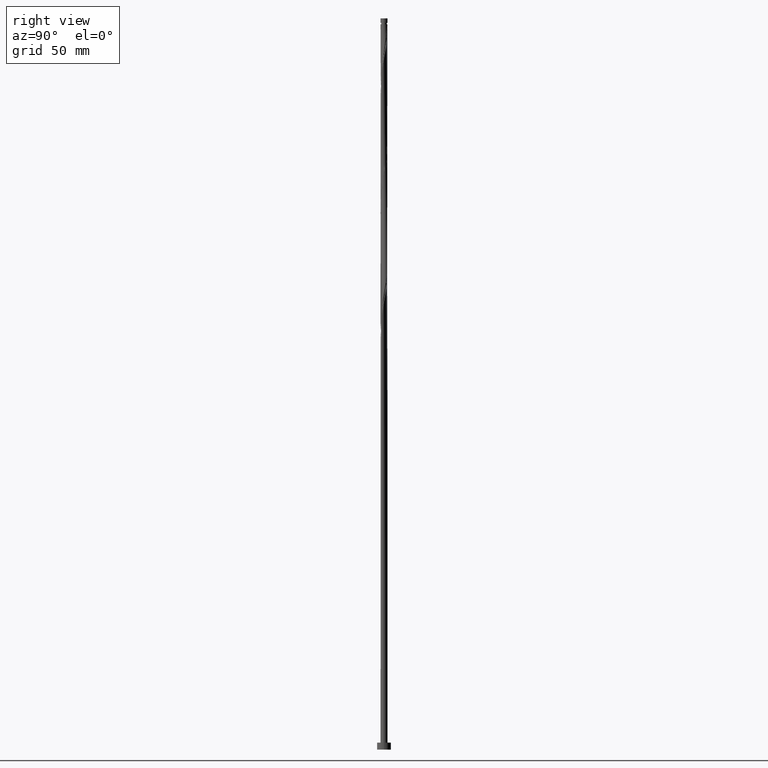
[diagram: clean part render]
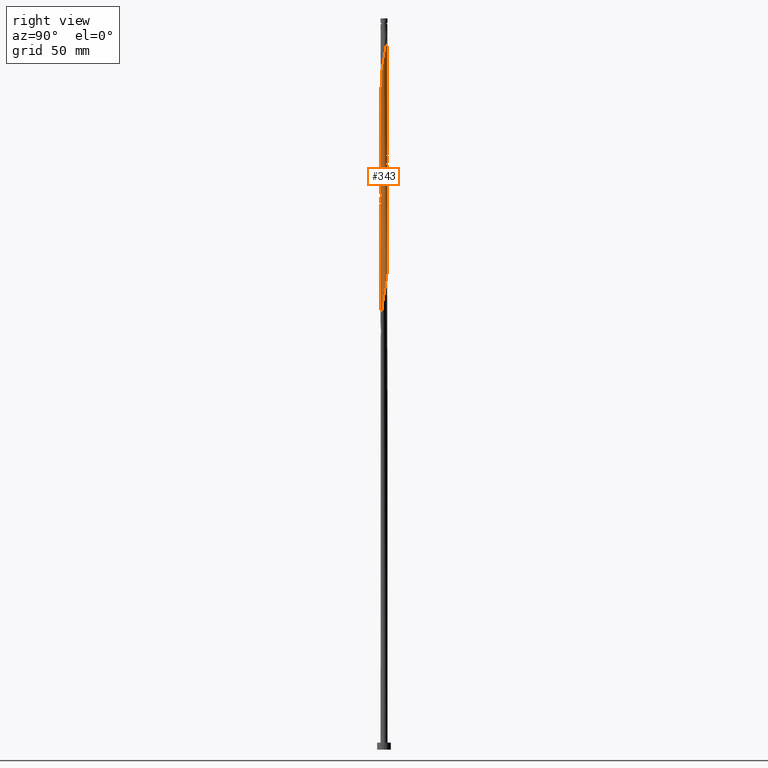
[diagram: same view with one face highlighted and labeled with its STEP entity id]
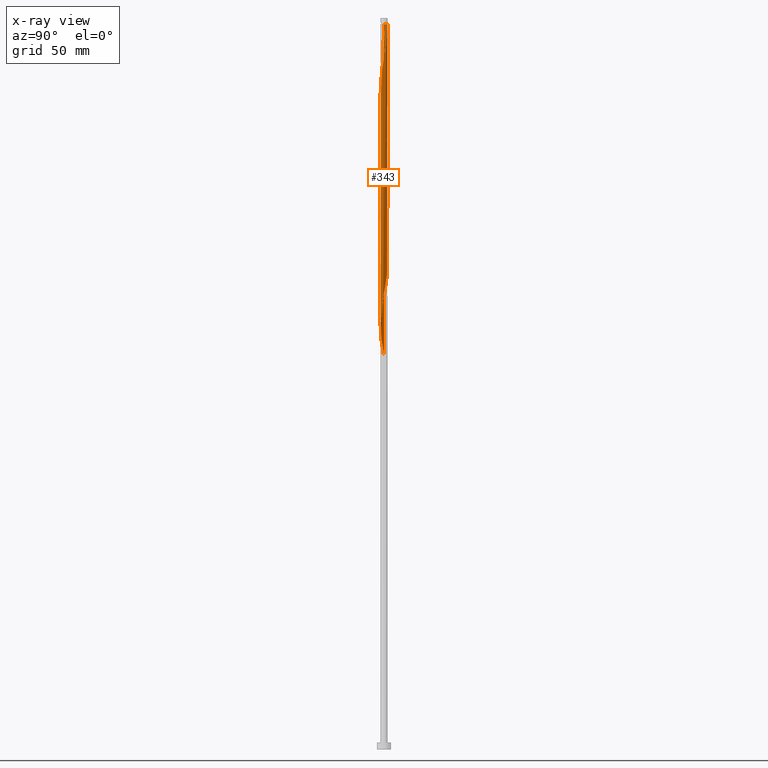
[diagram: x-ray of the same camera — body ghosted, the highlighted face saturated]
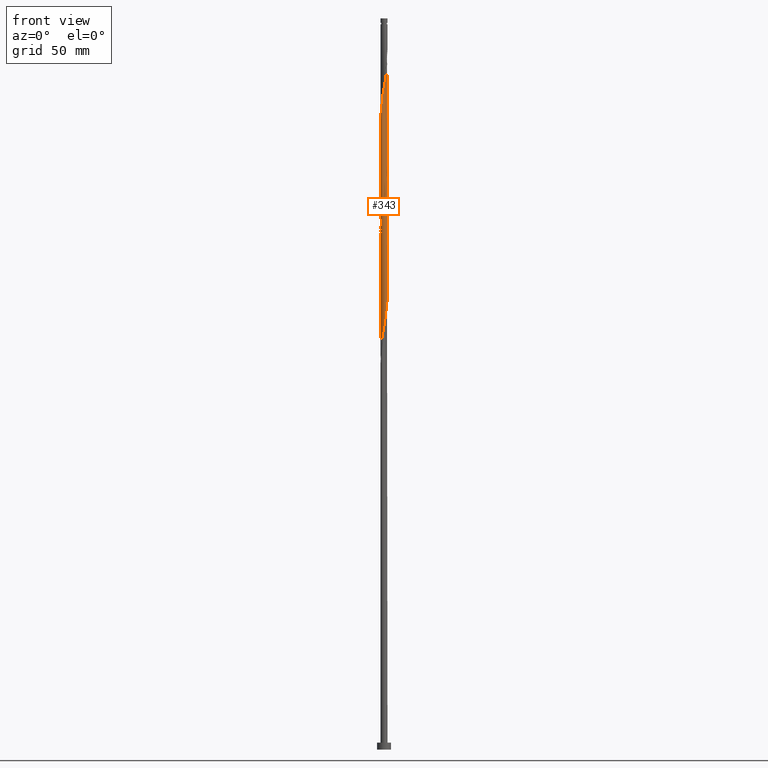
[diagram: same view with one face highlighted and labeled with its STEP entity id]
A machine part, right view. The second image highlights one B-rep face of the part: STEP entity #343.
The next image is the same camera in x-ray: the body ghosted, the highlighted face saturated — about 0% of this face is hidden behind the body in this view.
A second angle (front view) of the same face is appended — the face is thin or edge-on in the first view.
In plain terms, the highlighted cylindrical surface (bore or boss wall) has radius 1.5 mm, axis along (-0, -0, -1).
Its self-contained STEP definition (entity closure, byte-faithful):
#6 = CARTESIAN_POINT ( 'NONE',  ( -1.499565691041210069, -0.03609346550412936838, 169.9706648198285848 ) ) ;
#16 = CARTESIAN_POINT ( 'NONE',  ( -1.453936896692601621, -0.3688732850666835983, 171.8456648198285279 ) ) ;
#21 = CARTESIAN_POINT ( 'NONE',  ( 0.1328670094788252654, 1.503632447910743686, 208.4081648198285848 ) ) ;
#22 = CARTESIAN_POINT ( 'NONE',  ( 0.7721107078697179160, 1.297077189457445101, 257.1581648198285848 ) ) ;
#24 =( BOUNDED_CURVE ( )  B_SPLINE_CURVE ( 2, ( #1069, #1610, #952, #1752, #1759, #678, #807, #938, #1342, #114, #1191, #370, #1224, #494, #799, #528, #360, #1086, #1643, #781, #386, #1500, #650, #919, #1480, #1626, #1199, #928, #1334, #505, #392, #218, #1514, #1207, #249, #1361, #1353, #1326, #226, #86, #1618, #106, #96, #1767, #670 ),
 .UNSPECIFIED., .F., .T. ) 
 B_SPLINE_CURVE_WITH_KNOTS ( ( 3, 2, 2, 2, 2, 2, 2, 2, 2, 2, 2, 2, 2, 2, 2, 2, 2, 2, 2, 2, 2, 2, 3 ),
 ( 0.5545303401299220836, 0.5625000000000000000, 0.5714285714285713969, 0.5803571428571427937, 0.5892857142857143016, 0.5982142857142856984, 0.6071428571428572063, 0.6160714285714286031, 0.6250000000000000000, 0.6339285714285713969, 0.6428571428571427937, 0.6517857142857141906, 0.6607142857142855874, 0.6696428571428570953, 0.6785714285714284921, 0.6874999999999998890, 0.6964285714285712858, 0.7053571428571426827, 0.7142857142857141906, 0.7232142857142855874, 0.7321428571428570953, 0.7410714285714284921, 0.7499999999999998890 ),
 .UNSPECIFIED. ) 
 CURVE ( )  GEOMETRIC_REPRESENTATION_ITEM ( )  RATIONAL_B_SPLINE_CURVE ( ( 0.9079949616362548159, 0.9039886423361179757, 0.9090909090909848889, 0.9033747362666596503, 0.9090909090909848889, 0.9033747362666596503, 0.9090909090909848889, 0.9033747362666596503, 0.9090909090909848889, 0.9033747362666596503, 0.9090909090909848889, 0.9033747362666596503, 0.9090909090909848889, 0.9033747362666596503, 0.9090909090909848889, 0.9033747362666596503, 0.9090909090909848889, 0.9033747362666596503, 0.9090909090909848889, 0.9033747362666596503, 0.9090909090909848889, 0.9033747362666596503, 0.9090909090909848889, 0.9033747362666596503, 0.9090909090909848889, 0.9033747362666596503, 0.9090909090909848889, 0.9033747362666596503, 0.9090909090909848889, 0.9033747362666596503, 0.9090909090909848889, 0.9033747362666596503, 0.9090909090909848889, 0.9033747362666596503, 0.9090909090909848889, 0.9033747362666596503, 0.9090909090909848889, 0.9033747362666596503, 0.9090909090909848889, 0.9033747362666596503, 0.9090909090909848889, 0.9033747362666596503, 0.9090909090909848889, 0.9033747362666597613, 0.9090909090909847778 ) ) 
 REPRESENTATION_ITEM ( '' )  );
#27 = CARTESIAN_POINT ( 'NONE',  ( -1.041379108008156029, -1.092745960423574081, 176.5331648198285279 ) ) ;
#35 = CARTESIAN_POINT ( 'NONE',  ( -1.092745960423574081, 1.041379108008156029, 215.9081648198285563 ) ) ;
#36 = LINE ( 'NONE', #323, #1706 ) ;
#50 = DIRECTION ( 'NONE',  ( -0.000000000000000000, -0.000000000000000000, -1.000000000000000000 ) ) ;
#52 = CARTESIAN_POINT ( 'NONE',  ( 0.6831562578352955439, -1.335401635232065898, 239.3456648198285563 ) ) ;
#58 = CARTESIAN_POINT ( 'NONE',  ( 0.2050539404870840576, -1.495498934171677119, 236.5331648198284995 ) ) ;
#86 = CARTESIAN_POINT ( 'NONE',  ( 0.5326926296462844990, 1.412374859213528122, 307.7831648198284711 ) ) ;
#96 = CARTESIAN_POINT ( 'NONE',  ( 0.03609346550413014554, 1.499565691041212512, 310.5956648198285848 ) ) ;
#106 = CARTESIAN_POINT ( 'NONE',  ( 0.2050539404870850846, 1.495498934171678229, 309.6581648198285848 ) ) ;
#114 = CARTESIAN_POINT ( 'NONE',  ( -0.8336198860243095865, -1.258428411250606116, 279.6581648198285279 ) ) ;
#115 = CARTESIAN_POINT ( 'NONE',  ( -0.6181180803274348712, -1.366722370773350237, 231.8456648198285279 ) ) ;
#132 = CARTESIAN_POINT ( 'NONE',  ( -0.8336198860243083653, 1.258428411250604562, 266.5331648198285279 ) ) ;
#139 = CARTESIAN_POINT ( 'NONE',  ( 0.9067449079389369171, 1.194911574940509480, 256.2206648198285279 ) ) ;
#140 = CARTESIAN_POINT ( 'NONE',  ( -0.4641254527851517708, -1.436367552089254929, 232.7831648198285279 ) ) ;
#141 = VERTEX_POINT ( 'NONE', #184 ) ;
#148 = CARTESIAN_POINT ( 'NONE',  ( 1.335401635232065898, 0.6831562578352955439, 199.9706648198284995 ) ) ;
#156 = CARTESIAN_POINT ( 'NONE',  ( -1.412374859213526568, -0.5326926296462830557, 172.7831648198285563 ) ) ;
#164 = CARTESIAN_POINT ( 'NONE',  ( 1.500000000000000222, 1.836970198721030181E-16, 312.4706648198285279 ) ) ;
#173 = CARTESIAN_POINT ( 'NONE',  ( 1.436367552089254929, -0.4641254527851518819, 193.4081648198285279 ) ) ;
#184 = CARTESIAN_POINT ( 'NONE',  ( -1.500000000000000222, -1.722061120045993171E-15, 169.7701818977346306 ) ) ;
#199 = CARTESIAN_POINT ( 'NONE',  ( 0.9067449079389369171, 1.194911574940509480, 203.7206648198285563 ) ) ;
#212 = CARTESIAN_POINT ( 'NONE',  ( 1.499565691041209625, 0.03609346550412920185, 196.2206648198284711 ) ) ;
#214 = EDGE_CURVE ( 'NONE', #1401, #847, #1687, .T. ) ;
#218 = CARTESIAN_POINT ( 'NONE',  ( 1.436367552089257371, 0.4641254527851518819, 300.2831648198285279 ) ) ;
#226 = CARTESIAN_POINT ( 'NONE',  ( 0.6831562578352973203, 1.335401635232067230, 306.8456648198286416 ) ) ;
#249 = CARTESIAN_POINT ( 'NONE',  ( 1.194911574940512144, 0.9067449079389376942, 303.0956648198285279 ) ) ;
#253 = LINE ( 'NONE', #1090, #1356 ) ;
#256 = CARTESIAN_POINT ( 'NONE',  ( 0.1328670094788252654, 1.503632447910743686, 260.9081648198285279 ) ) ;
#257 = CARTESIAN_POINT ( 'NONE',  ( -1.258428411250604562, -0.8336198860243081432, 227.1581648198285279 ) ) ;
#260 = DIRECTION ( 'NONE',  ( -0.000000000000000000, -0.000000000000000000, -1.000000000000000000 ) ) ;
#262 = CARTESIAN_POINT ( 'NONE',  ( -0.9067449079389369171, -1.194911574940509480, 177.4706648198284995 ) ) ;
#268 = CARTESIAN_POINT ( 'NONE',  ( -1.503632447910743686, 0.1328670094788253486, 221.5331648198285563 ) ) ;
#272 = CARTESIAN_POINT ( 'NONE',  ( 1.495498934171677119, 0.2050539404870839189, 197.1581648198285848 ) ) ;
#275 = CARTESIAN_POINT ( 'NONE',  ( 1.469999999999999751, -0.2984962311319887540, 194.3456648198285563 ) ) ;
#278 = CARTESIAN_POINT ( 'NONE',  ( -0.4641254527851517708, -1.436367552089254929, 180.2831648198285848 ) ) ;
#281 = CARTESIAN_POINT ( 'NONE',  ( 1.258428411250604784, 0.8336198860243081432, 200.9081648198285563 ) ) ;
#303 = LINE ( 'NONE', #720, #567 ) ;
#316 = EDGE_CURVE ( 'NONE', #1710, #141, #726, .T. ) ;
#323 = CARTESIAN_POINT ( 'NONE',  ( -1.500000000000000222, 0.000000000000000000, 315.0000000000000000 ) ) ;
#330 = CARTESIAN_POINT ( 'NONE',  ( 0.3688732850666835983, -1.453936896692601399, 237.4706648198285563 ) ) ;
#343 = ADVANCED_FACE ( 'NONE', ( #436 ), #445, .T. ) ;
#353 = CARTESIAN_POINT ( 'NONE',  ( -1.297077189457445323, 0.7721107078697178050, 217.7831648198286132 ) ) ;
#356 = CARTESIAN_POINT ( 'NONE',  ( -1.469999999999999751, 0.2984962311319885320, 220.5956648198285279 ) ) ;
#360 = CARTESIAN_POINT ( 'NONE',  ( 0.2984962311319884765, -1.470000000000001972, 286.2206648198286416 ) ) ;
#370 = CARTESIAN_POINT ( 'NONE',  ( -0.5326926296462842769, -1.412374859213528344, 281.5331648198285279 ) ) ;
#386 = CARTESIAN_POINT ( 'NONE',  ( 0.9067449079389376942, -1.194911574940511922, 289.9706648198284142 ) ) ;
#392 = CARTESIAN_POINT ( 'NONE',  ( 1.470000000000001972, 0.2984962311319883099, 299.3456648198285848 ) ) ;
#402 = CARTESIAN_POINT ( 'NONE',  ( 1.258428411250604784, 0.8336198860243081432, 253.4081648198285279 ) ) ;
#411 = CARTESIAN_POINT ( 'NONE',  ( -0.03609346550412946553, 1.499565691041210069, 261.8456648198285848 ) ) ;
#423 = CARTESIAN_POINT ( 'NONE',  ( -0.7721107078697178050, -1.297077189457445323, 178.4081648198286132 ) ) ;
#428 = CARTESIAN_POINT ( 'NONE',  ( -0.3688732850666835983, 1.453936896692601621, 211.2206648198285563 ) ) ;
#436 = FACE_OUTER_BOUND ( 'NONE', #1675, .T. ) ;
#440 = CARTESIAN_POINT ( 'NONE',  ( 1.412374859213526568, 0.5326926296462828336, 251.5331648198285563 ) ) ;
#445 = CYLINDRICAL_SURFACE ( 'NONE', #753, 1.500000000000000222 ) ;
#471 = CARTESIAN_POINT ( 'NONE',  ( 0.2050539404870840576, -1.495498934171677119, 184.0331648198285563 ) ) ;
#487 = CARTESIAN_POINT ( 'NONE',  ( -1.366722370773350237, 0.6181180803274346491, 218.7206648198284995 ) ) ;
#494 = CARTESIAN_POINT ( 'NONE',  ( -0.2050539404870848070, -1.495498934171678673, 283.4081648198285848 ) ) ;
#505 = CARTESIAN_POINT ( 'NONE',  ( 1.503632447910746128, 0.1328670094788250156, 298.4081648198285848 ) ) ;
#528 = CARTESIAN_POINT ( 'NONE',  ( 0.1328670094788250988, -1.503632447910746128, 285.2831648198286416 ) ) ;
#536 = CARTESIAN_POINT ( 'NONE',  ( -1.366722370773350237, 0.6181180803274346491, 271.2206648198285848 ) ) ;
#537 = CARTESIAN_POINT ( 'NONE',  ( -1.149903759629380406, -0.9631829232239409455, 228.0956648198285848 ) ) ;
#545 = CARTESIAN_POINT ( 'NONE',  ( 1.495498934171677119, 0.2050539404870839189, 249.6581648198285563 ) ) ;
#546 = CARTESIAN_POINT ( 'NONE',  ( -1.495498934171677119, -0.2050539404870840576, 223.4081648198285279 ) ) ;
#554 = CARTESIAN_POINT ( 'NONE',  ( 1.335401635232065898, 0.6831562578352955439, 252.4706648198285279 ) ) ;
#558 = CARTESIAN_POINT ( 'NONE',  ( 1.503632447910743464, -0.1328670094788255429, 195.2831648198285563 ) ) ;
#560 = VERTEX_POINT ( 'NONE', #642 ) ;
#564 = CARTESIAN_POINT ( 'NONE',  ( -1.469999999999999751, 0.2984962311319885320, 273.0956648198285848 ) ) ;
#567 = VECTOR ( 'NONE', #855, 1000.000000000000000 ) ;
#587 = EDGE_CURVE ( 'NONE', #560, #847, #24, .T. ) ;
#598 = CARTESIAN_POINT ( 'NONE',  ( 1.194911574940509480, -0.9067449079389369171, 243.0956648198285279 ) ) ;
#603 = CARTESIAN_POINT ( 'NONE',  ( 0.6831562578352955439, -1.335401635232065898, 186.8456648198285563 ) ) ;
#619 = CARTESIAN_POINT ( 'NONE',  ( 0.03609346550412930593, -1.499565691041210069, 235.5956648198285279 ) ) ;
#623 = CARTESIAN_POINT ( 'NONE',  ( 0.9631829232239409455, -1.149903759629380628, 188.7206648198286132 ) ) ;
#626 = CARTESIAN_POINT ( 'NONE',  ( 0.6181180803274348712, 1.366722370773350237, 205.5956648198285848 ) ) ;
#628 = EDGE_CURVE ( 'NONE', #1028, #1710, #956, .T. ) ;
#636 = ORIENTED_EDGE ( 'NONE', *, *, #628, .F. ) ;
#642 = CARTESIAN_POINT ( 'NONE',  ( -1.500000000000002442, 2.238866028228796796E-16, 271.4211477419224821 ) ) ;
#650 = CARTESIAN_POINT ( 'NONE',  ( 1.149903759629381739, -0.9631829232239430549, 291.8456648198285279 ) ) ;
#651 = CARTESIAN_POINT ( 'NONE',  ( -0.9631829232239410565, 1.149903759629380406, 214.9706648198285563 ) ) ;
#670 = CARTESIAN_POINT ( 'NONE',  ( -0.2984962311320269457, 1.470000000000385221, 312.4706648198285279 ) ) ;
#671 = CARTESIAN_POINT ( 'NONE',  ( -0.2984962311319886430, -1.469999999999999751, 233.7206648198285848 ) ) ;
#678 = CARTESIAN_POINT ( 'NONE',  ( -1.297077189457447099, -0.7721107078697182491, 275.9081648198285848 ) ) ;
#686 = CARTESIAN_POINT ( 'NONE',  ( -1.092745960423574081, 1.041379108008156029, 268.4081648198284711 ) ) ;
#692 = CARTESIAN_POINT ( 'NONE',  ( -0.2050539404870842242, 1.495498934171677119, 262.7831648198284711 ) ) ;
#718 = ORIENTED_EDGE ( 'NONE', *, *, #1694, .T. ) ;
#720 = CARTESIAN_POINT ( 'NONE',  ( 1.500000000000000222, 1.836970198721030181E-16, 315.0000000000000000 ) ) ;
#726 =( BOUNDED_CURVE ( )  B_SPLINE_CURVE ( 2, ( #1576, #1163, #870, #1142, #1431, #881, #598, #1444, #1016, #1298, #52, #1167, #330, #58, #619, #1035, #671, #140, #115, #1124, #1790, #946, #537, #257, #976, #1379, #1239, #546, #1104, #268, #356, #1382, #487, #353, #1474, #35, #651, #1760, #1691, #974, #428, #897, #1806, #21, #1670, #1458, #626, #1396, #199, #759, #1539, #281, #148, #802, #1738, #272, #212, #558, #275, #173, #837, #739, #1438, #1311, #623, #886, #603, #1449, #1728, #471, #1041, #1347, #1019, #278, #1667, #423, #262, #27, #1392, #1699, #1405, #156, #16, #1250, #6, #1128, #1686 ),
 .UNSPECIFIED., .F., .T. ) 
 B_SPLINE_CURVE_WITH_KNOTS ( ( 3, 2, 2, 2, 2, 2, 2, 2, 2, 2, 2, 2, 2, 2, 2, 2, 2, 2, 2, 2, 2, 2, 2, 2, 2, 2, 2, 2, 2, 2, 2, 2, 2, 2, 2, 2, 2, 2, 2, 2, 2, 2, 2, 3 ),
 ( 0.5545303401299221946, 0.5625000000000000000, 0.5714285714285713969, 0.5803571428571429047, 0.5892857142857143016, 0.5982142857142856984, 0.6071428571428570953, 0.6160714285714286031, 0.6250000000000000000, 0.6339285714285713969, 0.6428571428571429047, 0.6517857142857143016, 0.6607142857142856984, 0.6696428571428570953, 0.6785714285714286031, 0.6875000000000000000, 0.6964285714285713969, 0.7053571428571429047, 0.7142857142857143016, 0.7232142857142856984, 0.7321428571428570953, 0.7410714285714286031, 0.7500000000000000000, 0.7589285714285713969, 0.7678571428571429047, 0.7767857142857143016, 0.7857142857142856984, 0.7946428571428570953, 0.8035714285714286031, 0.8125000000000000000, 0.8214285714285713969, 0.8303571428571429047, 0.8392857142857143016, 0.8482142857142856984, 0.8571428571428570953, 0.8660714285714286031, 0.8750000000000000000, 0.8839285714285713969, 0.8928571428571430157, 0.9017857142857141906, 0.9107142857142858094, 0.9196428571428569843, 0.9285714285714286031, 0.9295303401299221946 ),
 .UNSPECIFIED. ) 
 CURVE ( )  GEOMETRIC_REPRESENTATION_ITEM ( )  RATIONAL_B_SPLINE_CURVE ( ( 0.9079949616362491538, 0.9039886423361123136, 0.9090909090909792267, 0.9033747362666539882, 0.9090909090909792267, 0.9033747362666539882, 0.9090909090909792267, 0.9033747362666539882, 0.9090909090909792267, 0.9033747362666539882, 0.9090909090909792267, 0.9033747362666539882, 0.9090909090909792267, 0.9033747362666539882, 0.9090909090909792267, 0.9033747362666539882, 0.9090909090909792267, 0.9033747362666539882, 0.9090909090909792267, 0.9033747362666539882, 0.9090909090909792267, 0.9033747362666539882, 0.9090909090909792267, 0.9033747362666539882, 0.9090909090909792267, 0.9033747362666539882, 0.9090909090909792267, 0.9033747362666539882, 0.9090909090909792267, 0.9033747362666539882, 0.9090909090909792267, 0.9033747362666539882, 0.9090909090909792267, 0.9033747362666539882, 0.9090909090909792267, 0.9033747362666539882, 0.9090909090909792267, 0.9033747362666539882, 0.9090909090909792267, 0.9033747362666539882, 0.9090909090909792267, 0.9033747362666539882, 0.9090909090909792267, 0.9033747362666539882, 0.9090909090909792267, 0.9033747362666539882, 0.9090909090909792267, 0.9033747362666539882, 0.9090909090909792267, 0.9033747362666539882, 0.9090909090909792267, 0.9033747362666539882, 0.9090909090909792267, 0.9033747362666539882, 0.9090909090909792267, 0.9033747362666539882, 0.9090909090909792267, 0.9033747362666539882, 0.9090909090909792267, 0.9033747362666539882, 0.9090909090909792267, 0.9033747362666539882, 0.9090909090909792267, 0.9033747362666539882, 0.9090909090909792267, 0.9033747362666539882, 0.9090909090909792267, 0.9033747362666539882, 0.9090909090909792267, 0.9033747362666539882, 0.9090909090909792267, 0.9033747362666539882, 0.9090909090909792267, 0.9033747362666539882, 0.9090909090909792267, 0.9033747362666539882, 0.9090909090909792267, 0.9033747362666539882, 0.9090909090909792267, 0.9033747362666539882, 0.9090909090909792267, 0.9033747362666539882, 0.9090909090909792267, 0.9033747362666539882, 0.9090909090909792267, 0.9084770030215209013, 0.9079949616362491538 ) ) 
 REPRESENTATION_ITEM ( '' )  );
#738 = CARTESIAN_POINT ( 'NONE',  ( 1.499999999999999556, 1.554146167928832401E-15, 248.5201818977346022 ) ) ;
#739 = CARTESIAN_POINT ( 'NONE',  ( 1.297077189457445101, -0.7721107078697178050, 191.5331648198285848 ) ) ;
#743 = DIRECTION ( 'NONE',  ( -1.000000000000000000, 0.000000000000000000, 0.000000000000000000 ) ) ;
#753 = AXIS2_PLACEMENT_3D ( 'NONE', #1404, #990, #875 ) ;
#759 = CARTESIAN_POINT ( 'NONE',  ( 1.041379108008156251, 1.092745960423573859, 202.7831648198285563 ) ) ;
#781 = CARTESIAN_POINT ( 'NONE',  ( 0.7721107078697182491, -1.297077189457447099, 289.0331648198285279 ) ) ;
#799 = CARTESIAN_POINT ( 'NONE',  ( -0.03609346550412988880, -1.499565691041212512, 284.3456648198286416 ) ) ;
#802 = CARTESIAN_POINT ( 'NONE',  ( 1.412374859213526568, 0.5326926296462828336, 199.0331648198285848 ) ) ;
#807 = CARTESIAN_POINT ( 'NONE',  ( -1.194911574940511922, -0.9067449079389379163, 276.8456648198285848 ) ) ;
#825 = CARTESIAN_POINT ( 'NONE',  ( 0.6181180803274348712, 1.366722370773350237, 258.0956648198285279 ) ) ;
#837 = CARTESIAN_POINT ( 'NONE',  ( 1.366722370773350237, -0.6181180803274348712, 192.4706648198286132 ) ) ;
#847 = VERTEX_POINT ( 'NONE', #1559 ) ;
#855 = DIRECTION ( 'NONE',  ( -0.000000000000000000, -0.000000000000000000, -1.000000000000000000 ) ) ;
#861 = DIRECTION ( 'NONE',  ( -0.000000000000000000, -0.000000000000000000, -1.000000000000000000 ) ) ;
#870 = CARTESIAN_POINT ( 'NONE',  ( 1.469999999999999751, -0.2984962311319887540, 246.8456648198285848 ) ) ;
#875 = DIRECTION ( 'NONE',  ( -1.000000000000000000, 0.000000000000000000, 0.000000000000000000 ) ) ;
#881 = CARTESIAN_POINT ( 'NONE',  ( 1.297077189457445101, -0.7721107078697178050, 244.0331648198285563 ) ) ;
#886 = CARTESIAN_POINT ( 'NONE',  ( 0.8336198860243081432, -1.258428411250604784, 187.7831648198285279 ) ) ;
#897 = CARTESIAN_POINT ( 'NONE',  ( -0.2050539404870842242, 1.495498934171677119, 210.2831648198285563 ) ) ;
#919 = CARTESIAN_POINT ( 'NONE',  ( 1.258428411250606116, -0.8336198860243099196, 292.7831648198284711 ) ) ;
#928 = CARTESIAN_POINT ( 'NONE',  ( 1.495498934171678229, -0.2050539404870850013, 296.5331648198284711 ) ) ;
#938 = CARTESIAN_POINT ( 'NONE',  ( -1.092745960423575635, -1.041379108008156917, 277.7831648198285848 ) ) ;
#946 = CARTESIAN_POINT ( 'NONE',  ( -1.041379108008156029, -1.092745960423574081, 229.0331648198284995 ) ) ;
#952 = CARTESIAN_POINT ( 'NONE',  ( -1.470000000000001972, -0.2984962311319885320, 273.0956648198285848 ) ) ;
#956 =( BOUNDED_CURVE ( )  B_SPLINE_CURVE ( 2, ( #1671, #959, #564, #1522, #536, #1238, #1789, #686, #975, #132, #1653, #1095, #1807, #692, #411, #256, #1799, #1264, #825, #22, #139, #994, #1231, #402, #554, #440, #1254, #545, #1112, #1378, #1103 ),
 .UNSPECIFIED., .F., .T. ) 
 B_SPLINE_CURVE_WITH_KNOTS ( ( 3, 2, 2, 2, 2, 2, 2, 2, 2, 2, 2, 2, 2, 2, 2, 3 ),
 ( 0.4295303401299220281, 0.4375000000000000000, 0.4464285714285714524, 0.4553571428571428492, 0.4642857142857143016, 0.4732142857142856984, 0.4821428571428571508, 0.4910714285714285476, 0.5000000000000000000, 0.5089285714285713969, 0.5178571428571429047, 0.5267857142857143016, 0.5357142857142856984, 0.5446428571428570953, 0.5535714285714286031, 0.5545303401299221946 ),
 .UNSPECIFIED. ) 
 CURVE ( )  GEOMETRIC_REPRESENTATION_ITEM ( )  RATIONAL_B_SPLINE_CURVE ( ( 0.9079949616362492648, 0.9039886423361123136, 0.9090909090909792267, 0.9033747362666539882, 0.9090909090909792267, 0.9033747362666539882, 0.9090909090909792267, 0.9033747362666539882, 0.9090909090909792267, 0.9033747362666539882, 0.9090909090909792267, 0.9033747362666539882, 0.9090909090909792267, 0.9033747362666539882, 0.9090909090909792267, 0.9033747362666539882, 0.9090909090909792267, 0.9033747362666539882, 0.9090909090909792267, 0.9033747362666539882, 0.9090909090909792267, 0.9033747362666539882, 0.9090909090909792267, 0.9033747362666539882, 0.9090909090909792267, 0.9033747362666539882, 0.9090909090909792267, 0.9033747362666539882, 0.9090909090909792267, 0.9084770030215209013, 0.9079949616362491538 ) ) 
 REPRESENTATION_ITEM ( '' )  );
#959 = CARTESIAN_POINT ( 'NONE',  ( -1.499999999999999778, 0.1507556722888842016, 273.9319108187709162 ) ) ;
#974 = CARTESIAN_POINT ( 'NONE',  ( -0.5326926296462831667, 1.412374859213526568, 212.1581648198285563 ) ) ;
#975 = CARTESIAN_POINT ( 'NONE',  ( -0.9631829232239410565, 1.149903759629380406, 267.4706648198285848 ) ) ;
#976 = CARTESIAN_POINT ( 'NONE',  ( -1.335401635232065898, -0.6831562578352956550, 226.2206648198285563 ) ) ;
#979 = CARTESIAN_POINT ( 'NONE',  ( -1.500000000000000000, 1.417948484544913217E-16, 274.7701818977346875 ) ) ;
#990 = DIRECTION ( 'NONE',  ( -0.000000000000000000, -0.000000000000000000, -1.000000000000000000 ) ) ;
#994 = CARTESIAN_POINT ( 'NONE',  ( 1.041379108008156251, 1.092745960423573859, 255.2831648198285563 ) ) ;
#1016 = CARTESIAN_POINT ( 'NONE',  ( 0.9631829232239409455, -1.149903759629380628, 241.2206648198285563 ) ) ;
#1019 = CARTESIAN_POINT ( 'NONE',  ( -0.2984962311319886430, -1.469999999999999751, 181.2206648198285563 ) ) ;
#1028 = VERTEX_POINT ( 'NONE', #979 ) ;
#1035 = CARTESIAN_POINT ( 'NONE',  ( -0.1328670094788254319, -1.503632447910743464, 234.6581648198284995 ) ) ;
#1041 = CARTESIAN_POINT ( 'NONE',  ( 0.03609346550412930593, -1.499565691041210069, 183.0956648198285848 ) ) ;
#1069 = CARTESIAN_POINT ( 'NONE',  ( -1.500000000000002220, 2.238866028228796796E-16, 271.4211477419224821 ) ) ;
#1086 = CARTESIAN_POINT ( 'NONE',  ( 0.4641254527851519374, -1.436367552089257371, 287.1581648198285279 ) ) ;
#1090 = CARTESIAN_POINT ( 'NONE',  ( -1.500000000000000222, 0.000000000000000000, 315.0000000000000000 ) ) ;
#1095 = CARTESIAN_POINT ( 'NONE',  ( -0.5326926296462831667, 1.412374859213526568, 264.6581648198285279 ) ) ;
#1103 = CARTESIAN_POINT ( 'NONE',  ( 1.499999999999999556, 1.554146167928832401E-15, 248.5201818977346022 ) ) ;
#1104 = CARTESIAN_POINT ( 'NONE',  ( -1.499565691041210069, -0.03609346550412936838, 222.4706648198285279 ) ) ;
#1112 = CARTESIAN_POINT ( 'NONE',  ( 1.499565691041209625, 0.03609346550412920185, 248.7206648198285563 ) ) ;
#1116 = ORIENTED_EDGE ( 'NONE', *, *, #214, .T. ) ;
#1124 = CARTESIAN_POINT ( 'NONE',  ( -0.7721107078697178050, -1.297077189457445323, 230.9081648198284995 ) ) ;
#1128 = CARTESIAN_POINT ( 'NONE',  ( -1.500000000000000222, -0.01804934574958114851, 169.8705445859597489 ) ) ;
#1142 = CARTESIAN_POINT ( 'NONE',  ( 1.436367552089254929, -0.4641254527851518819, 245.9081648198285563 ) ) ;
#1163 = CARTESIAN_POINT ( 'NONE',  ( 1.499999999999998668, -0.1507556722888866163, 247.6819108187709730 ) ) ;
#1167 = CARTESIAN_POINT ( 'NONE',  ( 0.5326926296462830557, -1.412374859213526568, 238.4081648198285563 ) ) ;
#1191 = CARTESIAN_POINT ( 'NONE',  ( -0.6831562578352973203, -1.335401635232067230, 280.5956648198285848 ) ) ;
#1199 = CARTESIAN_POINT ( 'NONE',  ( 1.453936896692603620, -0.3688732850666848195, 295.5956648198286985 ) ) ;
#1207 = CARTESIAN_POINT ( 'NONE',  ( 1.297077189457447099, 0.7721107078697182491, 302.1581648198284711 ) ) ;
#1224 = CARTESIAN_POINT ( 'NONE',  ( -0.3688732850666847640, -1.453936896692603620, 282.4706648198286416 ) ) ;
#1231 = CARTESIAN_POINT ( 'NONE',  ( 1.149903759629380628, 0.9631829232239409455, 254.3456648198285563 ) ) ;
#1233 = ORIENTED_EDGE ( 'NONE', *, *, #587, .F. ) ;
#1238 = CARTESIAN_POINT ( 'NONE',  ( -1.297077189457445323, 0.7721107078697178050, 270.2831648198285848 ) ) ;
#1239 = CARTESIAN_POINT ( 'NONE',  ( -1.453936896692601621, -0.3688732850666835983, 224.3456648198285563 ) ) ;
#1250 = CARTESIAN_POINT ( 'NONE',  ( -1.495498934171677119, -0.2050539404870840576, 170.9081648198285563 ) ) ;
#1254 = CARTESIAN_POINT ( 'NONE',  ( 1.453936896692601621, 0.3688732850666834318, 250.5956648198285279 ) ) ;
#1264 = CARTESIAN_POINT ( 'NONE',  ( 0.4641254527851519374, 1.436367552089254929, 259.0331648198285279 ) ) ;
#1298 = CARTESIAN_POINT ( 'NONE',  ( 0.8336198860243081432, -1.258428411250604784, 240.2831648198284995 ) ) ;
#1301 = EDGE_CURVE ( 'NONE', #1401, #1028, #253, .T. ) ;
#1311 = CARTESIAN_POINT ( 'NONE',  ( 1.092745960423574081, -1.041379108008156029, 189.6581648198285279 ) ) ;
#1326 = CARTESIAN_POINT ( 'NONE',  ( 0.8336198860243099196, 1.258428411250606116, 305.9081648198285279 ) ) ;
#1334 = CARTESIAN_POINT ( 'NONE',  ( 1.499565691041212512, -0.03609346550412997207, 297.4706648198284711 ) ) ;
#1342 = CARTESIAN_POINT ( 'NONE',  ( -0.9631829232239430549, -1.149903759629381961, 278.7206648198285848 ) ) ;
#1347 = CARTESIAN_POINT ( 'NONE',  ( -0.1328670094788254319, -1.503632447910743464, 182.1581648198285563 ) ) ;
#1353 = CARTESIAN_POINT ( 'NONE',  ( 0.9631829232239430549, 1.149903759629381739, 304.9706648198286416 ) ) ;
#1356 = VECTOR ( 'NONE', #260, 1000.000000000000000 ) ;
#1361 = CARTESIAN_POINT ( 'NONE',  ( 1.092745960423575635, 1.041379108008156695, 304.0331648198285848 ) ) ;
#1378 = CARTESIAN_POINT ( 'NONE',  ( 1.499999999999999778, 0.01804934574958097851, 248.6205445859597205 ) ) ;
#1379 = CARTESIAN_POINT ( 'NONE',  ( -1.412374859213526568, -0.5326926296462830557, 225.2831648198285279 ) ) ;
#1382 = CARTESIAN_POINT ( 'NONE',  ( -1.436367552089255151, 0.4641254527851517153, 219.6581648198285279 ) ) ;
#1392 = CARTESIAN_POINT ( 'NONE',  ( -1.149903759629380406, -0.9631829232239409455, 175.5956648198285563 ) ) ;
#1396 = CARTESIAN_POINT ( 'NONE',  ( 0.7721107078697179160, 1.297077189457445101, 204.6581648198285563 ) ) ;
#1401 = VERTEX_POINT ( 'NONE', #1582 ) ;
#1404 = CARTESIAN_POINT ( 'NONE',  ( 0.000000000000000000, 0.000000000000000000, 315.0000000000000000 ) ) ;
#1405 = CARTESIAN_POINT ( 'NONE',  ( -1.335401635232065898, -0.6831562578352956550, 173.7206648198285563 ) ) ;
#1431 = CARTESIAN_POINT ( 'NONE',  ( 1.366722370773350237, -0.6181180803274348712, 244.9706648198285279 ) ) ;
#1438 = CARTESIAN_POINT ( 'NONE',  ( 1.194911574940509480, -0.9067449079389369171, 190.5956648198285279 ) ) ;
#1439 = VERTEX_POINT ( 'NONE', #164 ) ;
#1444 = CARTESIAN_POINT ( 'NONE',  ( 1.092745960423574081, -1.041379108008156029, 242.1581648198285563 ) ) ;
#1449 = CARTESIAN_POINT ( 'NONE',  ( 0.5326926296462830557, -1.412374859213526568, 185.9081648198285279 ) ) ;
#1458 = CARTESIAN_POINT ( 'NONE',  ( 0.4641254527851519374, 1.436367552089254929, 206.5331648198285563 ) ) ;
#1474 = CARTESIAN_POINT ( 'NONE',  ( -1.194911574940509480, 0.9067449079389366950, 216.8456648198285279 ) ) ;
#1480 = CARTESIAN_POINT ( 'NONE',  ( 1.335401635232067230, -0.6831562578352973203, 293.7206648198286416 ) ) ;
#1500 = CARTESIAN_POINT ( 'NONE',  ( 1.041379108008156917, -1.092745960423575635, 290.9081648198285848 ) ) ;
#1508 = EDGE_CURVE ( 'NONE', #1439, #1710, #303, .T. ) ;
#1514 = CARTESIAN_POINT ( 'NONE',  ( 1.366722370773353123, 0.6181180803274352042, 301.2206648198285848 ) ) ;
#1522 = CARTESIAN_POINT ( 'NONE',  ( -1.436367552089255151, 0.4641254527851517153, 272.1581648198285848 ) ) ;
#1527 = AXIS2_PLACEMENT_3D ( 'NONE', #1587, #50, #743 ) ;
#1539 = CARTESIAN_POINT ( 'NONE',  ( 1.149903759629380628, 0.9631829232239409455, 201.8456648198285563 ) ) ;
#1559 = CARTESIAN_POINT ( 'NONE',  ( -0.2984962311320269457, 1.470000000000385221, 312.4706648198285279 ) ) ;
#1572 = ORIENTED_EDGE ( 'NONE', *, *, #1508, .F. ) ;
#1576 = CARTESIAN_POINT ( 'NONE',  ( 1.499999999999999556, 1.554146167928832401E-15, 248.5201818977346022 ) ) ;
#1582 = CARTESIAN_POINT ( 'NONE',  ( -1.499999999999974021, 0.000000000000000000, 312.4706648198285279 ) ) ;
#1587 = CARTESIAN_POINT ( 'NONE',  ( 0.000000000000000000, 0.000000000000000000, 312.4706648198285279 ) ) ;
#1598 = ORIENTED_EDGE ( 'NONE', *, *, #1301, .F. ) ;
#1610 = CARTESIAN_POINT ( 'NONE',  ( -1.500000000000001998, -0.1507556722888841183, 272.2594188208860828 ) ) ;
#1618 = CARTESIAN_POINT ( 'NONE',  ( 0.3688732850666848195, 1.453936896692603620, 308.7206648198286985 ) ) ;
#1626 = CARTESIAN_POINT ( 'NONE',  ( 1.412374859213528344, -0.5326926296462842769, 294.6581648198284142 ) ) ;
#1643 = CARTESIAN_POINT ( 'NONE',  ( 0.6181180803274352042, -1.366722370773352457, 288.0956648198286416 ) ) ;
#1653 = CARTESIAN_POINT ( 'NONE',  ( -0.6831562578352956550, 1.335401635232065676, 265.5956648198285279 ) ) ;
#1659 = ORIENTED_EDGE ( 'NONE', *, *, #316, .F. ) ;
#1667 = CARTESIAN_POINT ( 'NONE',  ( -0.6181180803274348712, -1.366722370773350237, 179.3456648198285848 ) ) ;
#1670 = CARTESIAN_POINT ( 'NONE',  ( 0.2984962311319889205, 1.469999999999999751, 207.4706648198285848 ) ) ;
#1671 = CARTESIAN_POINT ( 'NONE',  ( -1.500000000000000000, 1.417948484544913217E-16, 274.7701818977346875 ) ) ;
#1675 = EDGE_LOOP ( 'NONE', ( #1598, #1116, #1233, #718, #1659, #1572, #1716, #636 ) ) ;
#1686 = CARTESIAN_POINT ( 'NONE',  ( -1.500000000000000222, -1.722061120045993171E-15, 169.7701818977346306 ) ) ;
#1687 = CIRCLE ( 'NONE', #1527, 1.499999999999974021 ) ;
#1691 = CARTESIAN_POINT ( 'NONE',  ( -0.6831562578352956550, 1.335401635232065676, 213.0956648198285279 ) ) ;
#1694 = EDGE_CURVE ( 'NONE', #560, #141, #36, .T. ) ;
#1699 = CARTESIAN_POINT ( 'NONE',  ( -1.258428411250604562, -0.8336198860243081432, 174.6581648198285279 ) ) ;
#1706 = VECTOR ( 'NONE', #861, 1000.000000000000000 ) ;
#1710 = VERTEX_POINT ( 'NONE', #738 ) ;
#1716 = ORIENTED_EDGE ( 'NONE', *, *, #1508, .T. ) ;
#1728 = CARTESIAN_POINT ( 'NONE',  ( 0.3688732850666835983, -1.453936896692601399, 184.9706648198285563 ) ) ;
#1738 = CARTESIAN_POINT ( 'NONE',  ( 1.453936896692601621, 0.3688732850666834318, 198.0956648198285279 ) ) ;
#1752 = CARTESIAN_POINT ( 'NONE',  ( -1.436367552089257371, -0.4641254527851519929, 274.0331648198285279 ) ) ;
#1759 = CARTESIAN_POINT ( 'NONE',  ( -1.366722370773352457, -0.6181180803274352042, 274.9706648198286416 ) ) ;
#1760 = CARTESIAN_POINT ( 'NONE',  ( -0.8336198860243083653, 1.258428411250604562, 214.0331648198285279 ) ) ;
#1767 = CARTESIAN_POINT ( 'NONE',  ( -0.1328670094788227951, 1.503632447910745684, 311.5331648198285279 ) ) ;
#1789 = CARTESIAN_POINT ( 'NONE',  ( -1.194911574940509480, 0.9067449079389366950, 269.3456648198285848 ) ) ;
#1790 = CARTESIAN_POINT ( 'NONE',  ( -0.9067449079389369171, -1.194911574940509480, 229.9706648198285848 ) ) ;
#1799 = CARTESIAN_POINT ( 'NONE',  ( 0.2984962311319889205, 1.469999999999999751, 259.9706648198285848 ) ) ;
#1806 = CARTESIAN_POINT ( 'NONE',  ( -0.03609346550412946553, 1.499565691041210069, 209.3456648198285848 ) ) ;
#1807 = CARTESIAN_POINT ( 'NONE',  ( -0.3688732850666835983, 1.453936896692601621, 263.7206648198285279 ) ) ;